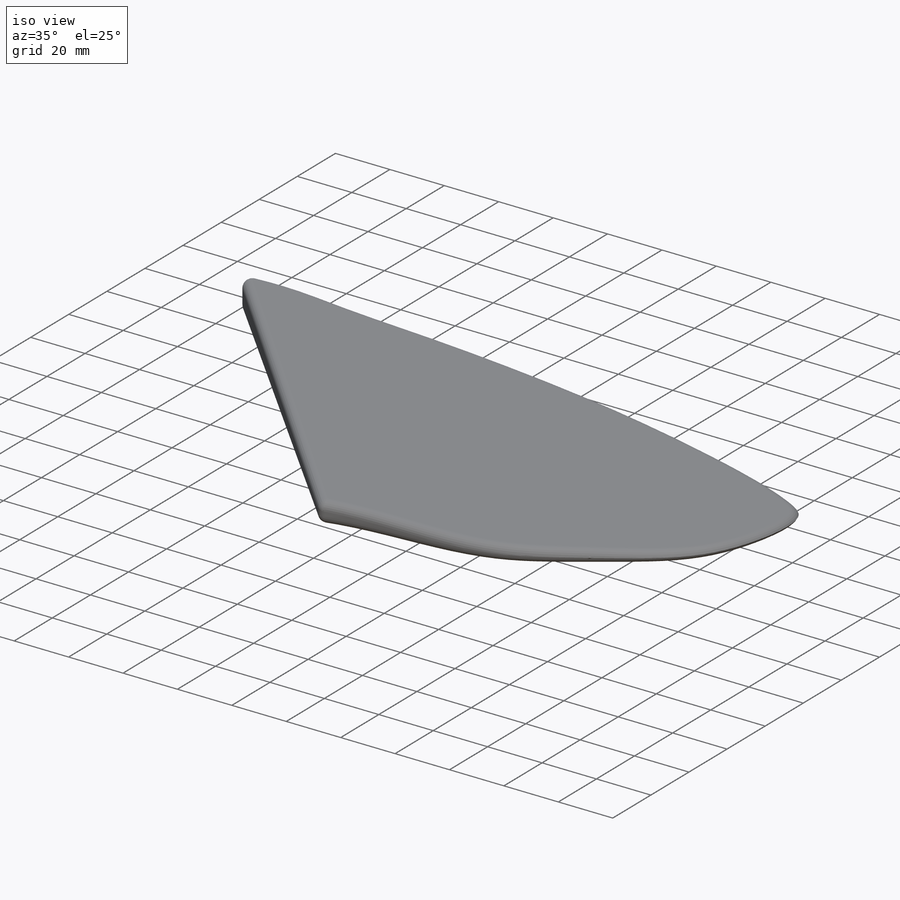
[diagram: iso view]
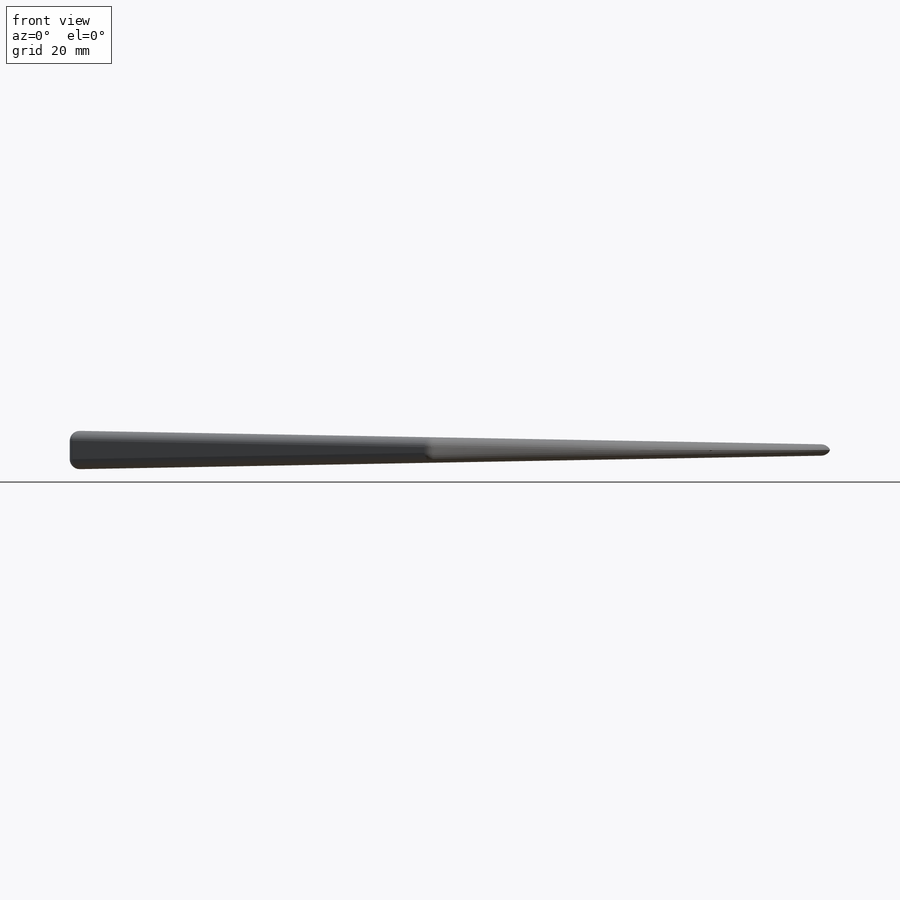
[diagram: front view]
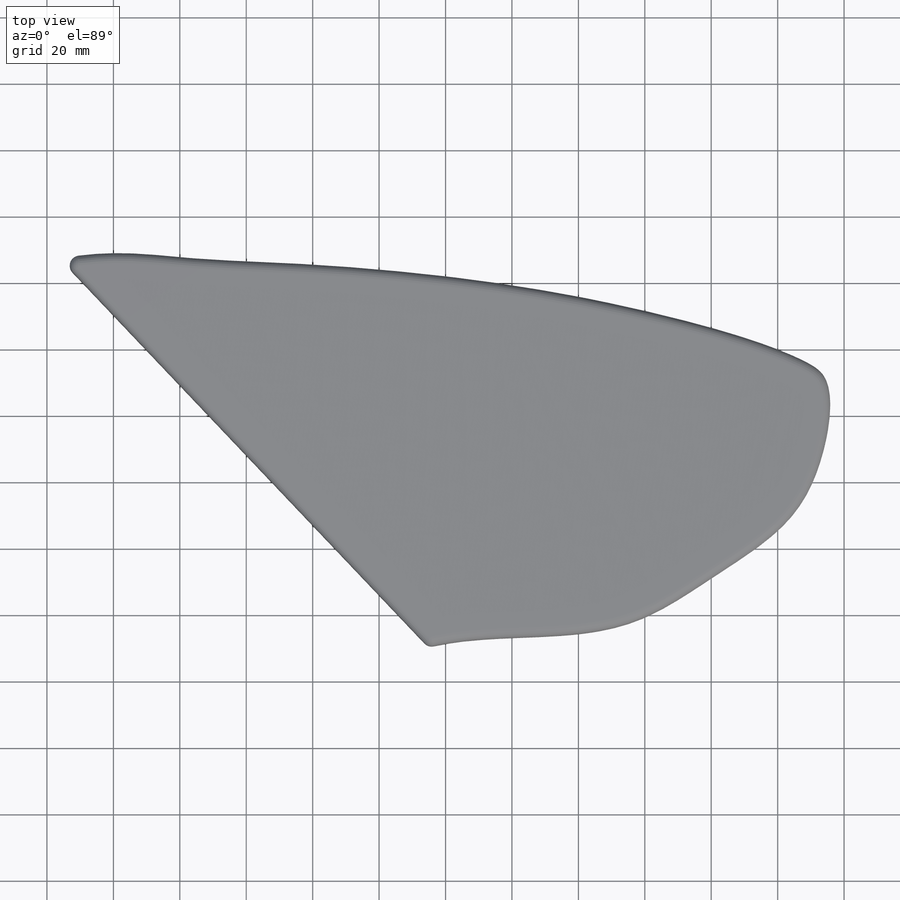
[diagram: top view]
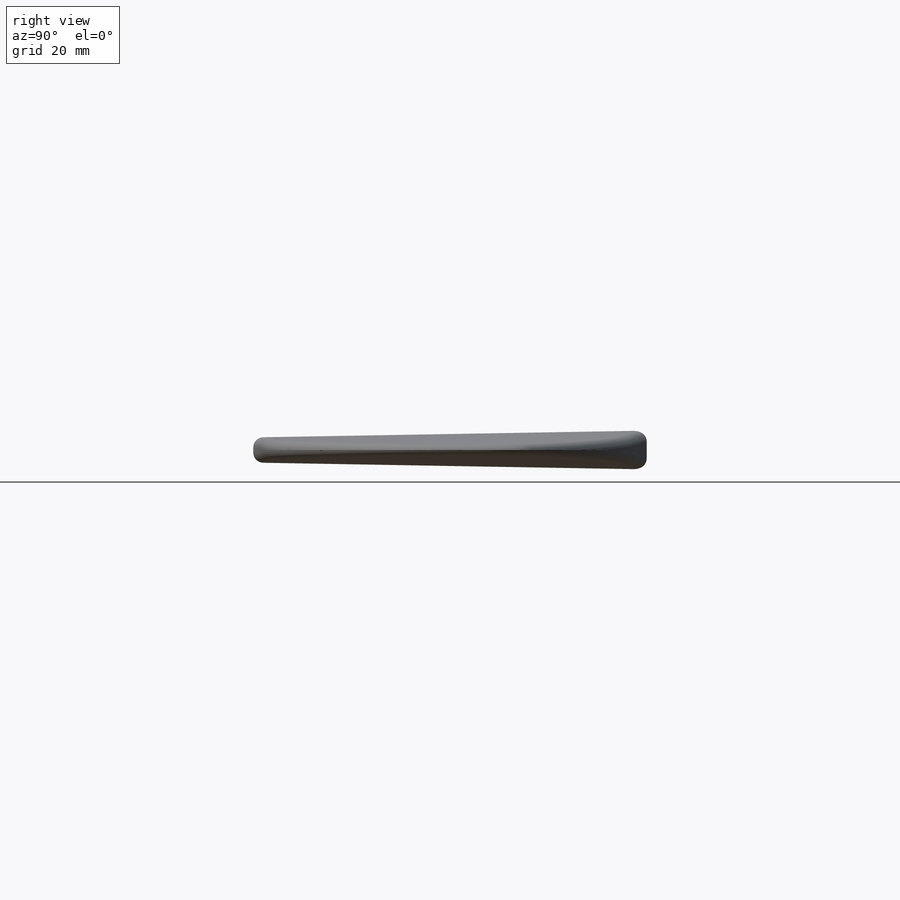
[diagram: right view]
SOLIDWORKS PART (.sldprt)
format: sldprt  version: not decoded by parser v0  size: 10,107,392 bytes
history: native  units: mm
features: sketch x2, fillet x2, plane x2, material x1, extrude x1, cut_extrude x1 (+12 scaffold rows collapsed)
feature tree (21):
  scaffold x12  (default folders/planes/origin — collapsed)
  material  "Material <not specified>"
  sketch  "Sketch1"  dims[c1.D1=300.0mm c1.D2=35.0mm c1.D3=43.0mm c1.D4=70.0mm c1.D5=~91.317038mm c1.D6=70.0mm c2.D4=70.0mm c2.D5=63.5mm c2.D6=70.0mm c3.D4=63.5mm c3.D2=35.0mm c3.D3=70.0mm c4.D4=43.0mm c4.D5=63.5mm c5.D4=43.0mm c5.D5=~62.610651mm c6.D4=43.0mm]
  extrude  "Boss-Extrude1"  Depth=7.15mm
  sketch  "Sketch2"  dims[D1=3.3mm D2=303.0mm]
  cut_extrude  "Cut-Extrude2"  [1 undecoded]
  fillet  "Fillet1"  Radius=3mm
  plane  "Plane1"
  plane  "Plane2"
  fillet  "Fillet2"  Radius=3mm
decode coverage: 5 of 6 modeling features carry decoded parameters
note: ~ marks probable driven/reference dimensions
note: 1 parameter value undecoded
note: suppression state not decoded; provenance and decode notes live in map.json
